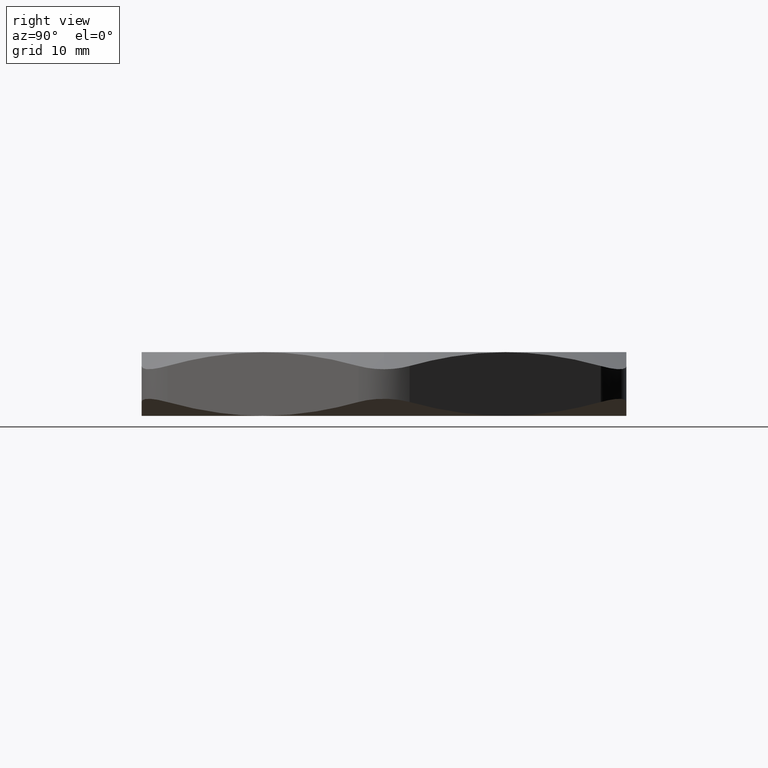
[diagram: clean part render]
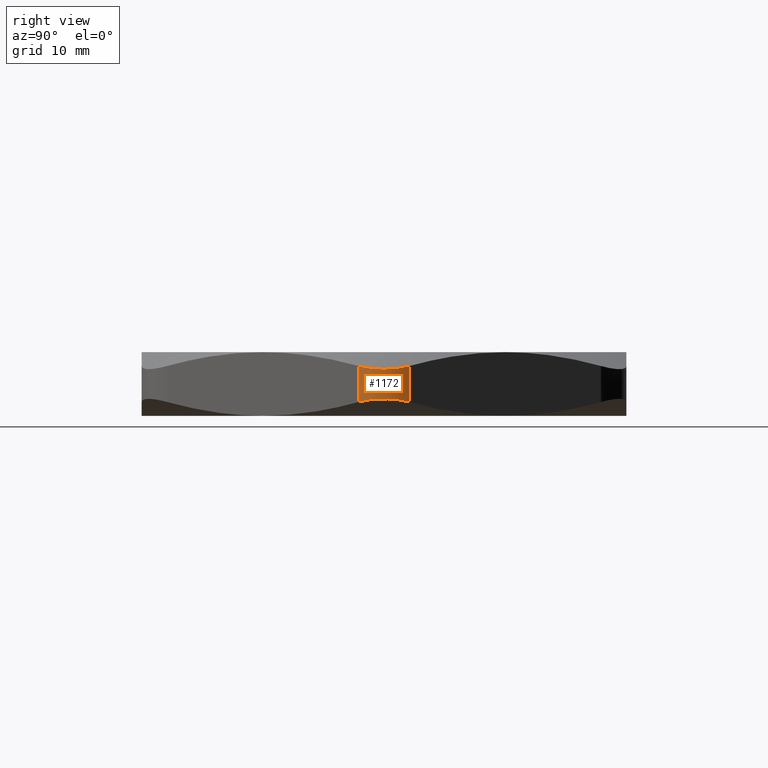
[diagram: same view with one face highlighted and labeled with its STEP entity id]
A machine part, right view. The second image highlights one B-rep face of the part: STEP entity #1172.
In plain terms, the highlighted cylindrical surface (partial cylindrical patch) has radius 6.35 mm, axis along (0, 0, -1).
Its self-contained STEP definition (entity closure, byte-faithful):
#25 = CARTESIAN_POINT ( 'NONE',  ( 1.323871500692703800, -1.232579635649854100E-024, 0.2269357503463525200 ) ) ;
#26 = CARTESIAN_POINT ( 'NONE',  ( 1.323871500692704200, -0.01098405379685871800, 0.2269357503463525200 ) ) ;
#27 = CARTESIAN_POINT ( 'NONE',  ( 1.323150731314133500, -0.02191688359895175400, 0.2272730796241370100 ) ) ;
#28 = CARTESIAN_POINT ( 'NONE',  ( 1.320270611761771700, -0.04368023203091912100, 0.2286236963736375000 ) ) ;
#29 = CARTESIAN_POINT ( 'NONE',  ( 1.318082992759607800, -0.05459731993352139000, 0.2296502803749607700 ) ) ;
#30 = CARTESIAN_POINT ( 'NONE',  ( 1.309510802919501100, -0.08634002578141490600, 0.2336862750730251400 ) ) ;
#31 = CARTESIAN_POINT ( 'NONE',  ( 1.301193061145004200, -0.1062675076407764600, 0.2376136801013973000 ) ) ;
#32 = CARTESIAN_POINT ( 'NONE',  ( 1.290377851638813600, -0.1249999999999997600, 0.2427859541343050700 ) ) ;
#35 = B_SPLINE_CURVE_WITH_KNOTS ( 'NONE', 3,
 ( #32, #31, #30, #29, #28, #27, #26, #25 ),
 .UNSPECIFIED., .F., .F.,
 ( 4, 2, 2, 4 ),
 ( 4.336808689942017700E-019, 0.001671790699287650200, 0.002507686048931474200, 0.003343581398575299100 ),
 .UNSPECIFIED. ) ;
#507 = CARTESIAN_POINT ( 'NONE',  ( 1.323880134261621300, -0.01076827507157215000, 0.08306829295617798600 ) ) ;
#508 = CARTESIAN_POINT ( 'NONE',  ( 1.323862709342718900, 0.01116549169178957500, 0.08306013245854915200 ) ) ;
#509 = CARTESIAN_POINT ( 'NONE',  ( 1.323135509530177800, 0.02208131324083308100, 0.08271979029129168700 ) ) ;
#510 = CARTESIAN_POINT ( 'NONE',  ( 1.320246686176114600, 0.04381094011982417100, 0.08136507564973521900 ) ) ;
#511 = CARTESIAN_POINT ( 'NONE',  ( 1.318056817555447200, 0.05471080628804193800, 0.08033741714334199900 ) ) ;
#512 = CARTESIAN_POINT ( 'NONE',  ( 1.309485597971105100, 0.08640001358719517900, 0.07630181465680784000 ) ) ;
#513 = CARTESIAN_POINT ( 'NONE',  ( 1.301176764405753900, 0.1062957344211558100, 0.07237852613360940000 ) ) ;
#514 = CARTESIAN_POINT ( 'NONE',  ( 1.290377851638813600, 0.1250000000000002800, 0.06721404586569496000 ) ) ;
#517 = B_SPLINE_CURVE_WITH_KNOTS ( 'NONE', 3,
 ( #514, #513, #512, #511, #510, #509, #508, #507, #571, #570, #569, #568, #567, #566 ),
 .UNSPECIFIED., .F., .F.,
 ( 4, 2, 2, 2, 2, 2, 4 ),
 ( 0.0000000000000000000, 0.001669271586080330300, 0.002503907379120495500, 0.003338543172160661400, 0.004173178965200827700, 0.005007814758240991900, 0.006677086344321322800 ),
 .UNSPECIFIED. ) ;
#566 = CARTESIAN_POINT ( 'NONE',  ( 1.290377851638813600, -0.1249999999999997100, 0.06721404586569496000 ) ) ;
#567 = CARTESIAN_POINT ( 'NONE',  ( 1.301179324903586300, -0.1062912995088180400, 0.07237975066804328000 ) ) ;
#568 = CARTESIAN_POINT ( 'NONE',  ( 1.309633521215260100, -0.08596173029005486900, 0.07637160150552650700 ) ) ;
#569 = CARTESIAN_POINT ( 'NONE',  ( 1.318111162438620100, -0.05445433847798835500, 0.08036293289793382300 ) ) ;
#570 = CARTESIAN_POINT ( 'NONE',  ( 1.320262292194869700, -0.04374042279998511400, 0.08137240177445197200 ) ) ;
#571 = CARTESIAN_POINT ( 'NONE',  ( 1.323156963948952000, -0.02187246060466808600, 0.08272984357175608400 ) ) ;
#672 = CARTESIAN_POINT ( 'NONE',  ( 1.290377851638813600, 0.1250000000000003600, 0.2427859541343050100 ) ) ;
#673 = CARTESIAN_POINT ( 'NONE',  ( 1.301163024300264800, 0.1063195329819646200, 0.2376280449449062200 ) ) ;
#674 = CARTESIAN_POINT ( 'NONE',  ( 1.309608273902644400, 0.08602256121026832800, 0.2336403273867144700 ) ) ;
#675 = CARTESIAN_POINT ( 'NONE',  ( 1.318085377249127700, 0.05456655859989943700, 0.2296491859462562200 ) ) ;
#676 = CARTESIAN_POINT ( 'NONE',  ( 1.320238384401354300, 0.04387041525387968400, 0.2286388179600905800 ) ) ;
#677 = CARTESIAN_POINT ( 'NONE',  ( 1.323141469423208900, 0.02203945126250706600, 0.2272774143254681600 ) ) ;
#678 = CARTESIAN_POINT ( 'NONE',  ( 1.323871500692704400, 0.01095095147729039700, 0.2269357503463524700 ) ) ;
#679 = CARTESIAN_POINT ( 'NONE',  ( 1.323871500692703800, -1.232579635649854100E-024, 0.2269357503463525200 ) ) ;
#680 = B_SPLINE_CURVE_WITH_KNOTS ( 'NONE', 3,
 ( #679, #678, #677, #676, #675, #674, #673, #672 ),
 .UNSPECIFIED., .F., .F.,
 ( 4, 2, 2, 4 ),
 ( 0.003343581398575299100, 0.004176957635011804700, 0.005010333871448310700, 0.006677086344321323700 ),
 .UNSPECIFIED. ) ;
#681 = CARTESIAN_POINT ( 'NONE',  ( 1.290377851638813600, 0.1250000000000003600, 0.2427859541343050100 ) ) ;
#682 = CARTESIAN_POINT ( 'NONE',  ( 1.323871500692703800, -1.232579635649854100E-024, 0.2269357503463525200 ) ) ;
#1172 = ADVANCED_FACE ( 'NONE', ( #2233 ), #2232, .T. ) ;
#1173 = EDGE_LOOP ( 'NONE', ( #1174, #1175, #1176, #1177, #1178 ) ) ;
#1174 = ORIENTED_EDGE ( 'NONE', *, *, #1584, .F. ) ;
#1175 = ORIENTED_EDGE ( 'NONE', *, *, #1330, .F. ) ;
#1176 = ORIENTED_EDGE ( 'NONE', *, *, #1836, .F. ) ;
#1177 = ORIENTED_EDGE ( 'NONE', *, *, #1270, .F. ) ;
#1178 = ORIENTED_EDGE ( 'NONE', *, *, #1901, .F. ) ;
#1270 = EDGE_CURVE ( 'NONE', #1902, #1271, #2371, .T. ) ;
#1271 = VERTEX_POINT ( 'NONE', #2361 ) ;
#1327 = VERTEX_POINT ( 'NONE', #2522 ) ;
#1330 = EDGE_CURVE ( 'NONE', #1327, #1331, #2521, .T. ) ;
#1331 = VERTEX_POINT ( 'NONE', #2511 ) ;
#1584 = EDGE_CURVE ( 'NONE', #1331, #1899, #35, .T. ) ;
#1836 = EDGE_CURVE ( 'NONE', #1271, #1327, #517, .T. ) ;
#1899 = VERTEX_POINT ( 'NONE', #682 ) ;
#1901 = EDGE_CURVE ( 'NONE', #1899, #1902, #680, .T. ) ;
#1902 = VERTEX_POINT ( 'NONE', #681 ) ;
#2227 = DIRECTION ( 'NONE',  ( -1.000000000000000000, 0.0000000000000000000, 0.0000000000000000000 ) ) ;
#2228 = DIRECTION ( 'NONE',  ( 0.0000000000000000000, 0.0000000000000000000, -1.000000000000000000 ) ) ;
#2229 = AXIS2_PLACEMENT_3D ( 'NONE', #2231, #2228, #2227 ) ;
#2231 = CARTESIAN_POINT ( 'NONE',  ( 1.073871500692704000, 2.561107494060246600E-016, 0.3100000000000000000 ) ) ;
#2232 = CYLINDRICAL_SURFACE ( 'NONE', #2229, 0.2499999999999999200 ) ;
#2233 = FACE_OUTER_BOUND ( 'NONE', #1173, .T. ) ;
#2361 = CARTESIAN_POINT ( 'NONE',  ( 1.290377851638813600, 0.1250000000000002800, 0.06721404586569496000 ) ) ;
#2362 = DIRECTION ( 'NONE',  ( 0.0000000000000000000, 0.0000000000000000000, -1.000000000000000000 ) ) ;
#2363 = VECTOR ( 'NONE', #2362, 39.37007874015748100 ) ;
#2370 = CARTESIAN_POINT ( 'NONE',  ( 1.290377851638813600, 0.1250000000000003100, 0.3100000000000000000 ) ) ;
#2371 = LINE ( 'NONE', #2370, #2363 ) ;
#2511 = CARTESIAN_POINT ( 'NONE',  ( 1.290377851638813600, -0.1249999999999997600, 0.2427859541343050700 ) ) ;
#2512 = DIRECTION ( 'NONE',  ( 0.0000000000000000000, 0.0000000000000000000, 1.000000000000000000 ) ) ;
#2513 = VECTOR ( 'NONE', #2512, 39.37007874015748100 ) ;
#2514 = CARTESIAN_POINT ( 'NONE',  ( 1.290377851638813600, -0.1249999999999996300, 0.3100000000000000000 ) ) ;
#2521 = LINE ( 'NONE', #2514, #2513 ) ;
#2522 = CARTESIAN_POINT ( 'NONE',  ( 1.290377851638813600, -0.1249999999999997100, 0.06721404586569496000 ) ) ;